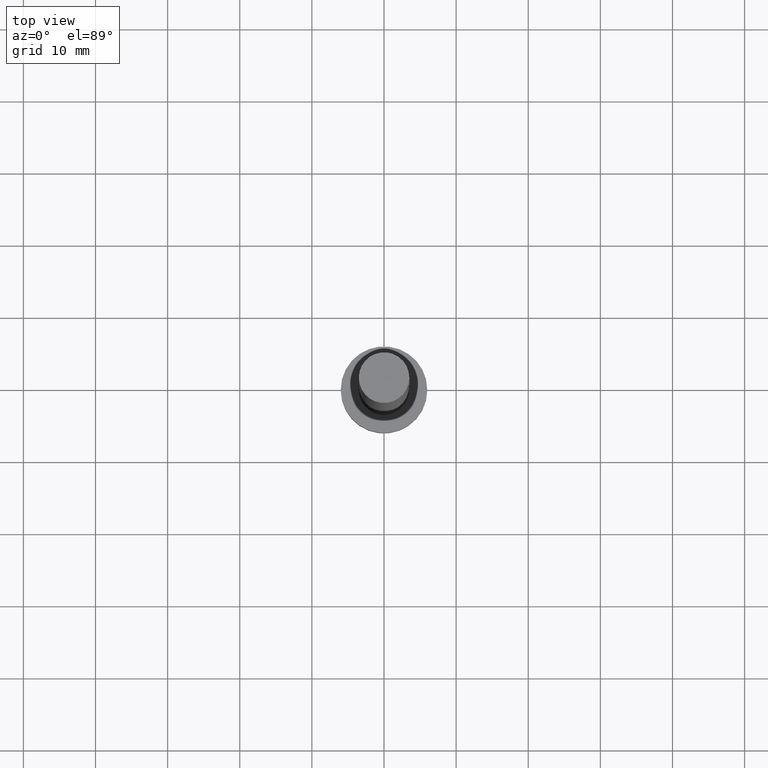
[diagram: clean part render]
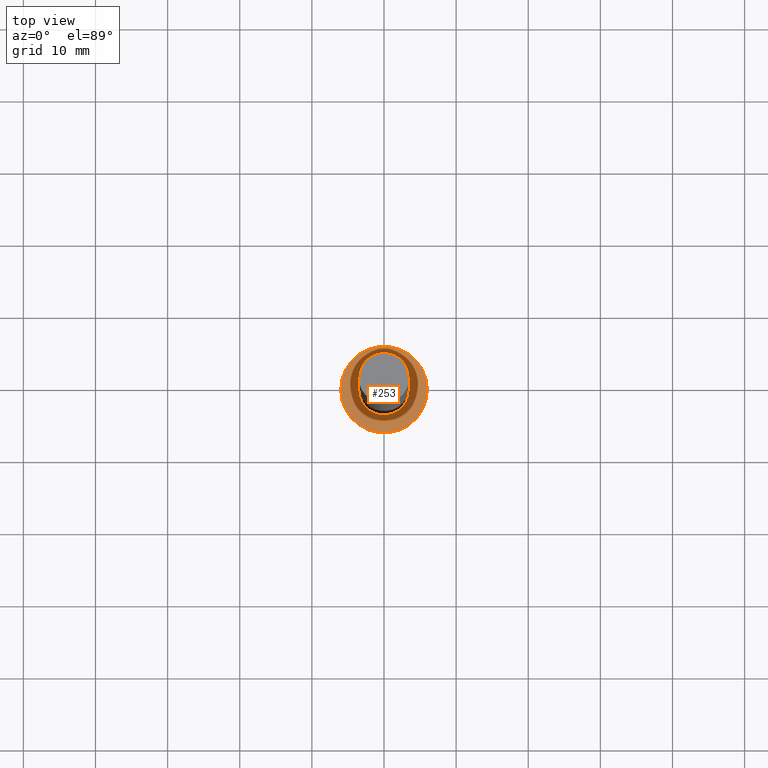
[diagram: same view with one face highlighted and labeled with its STEP entity id]
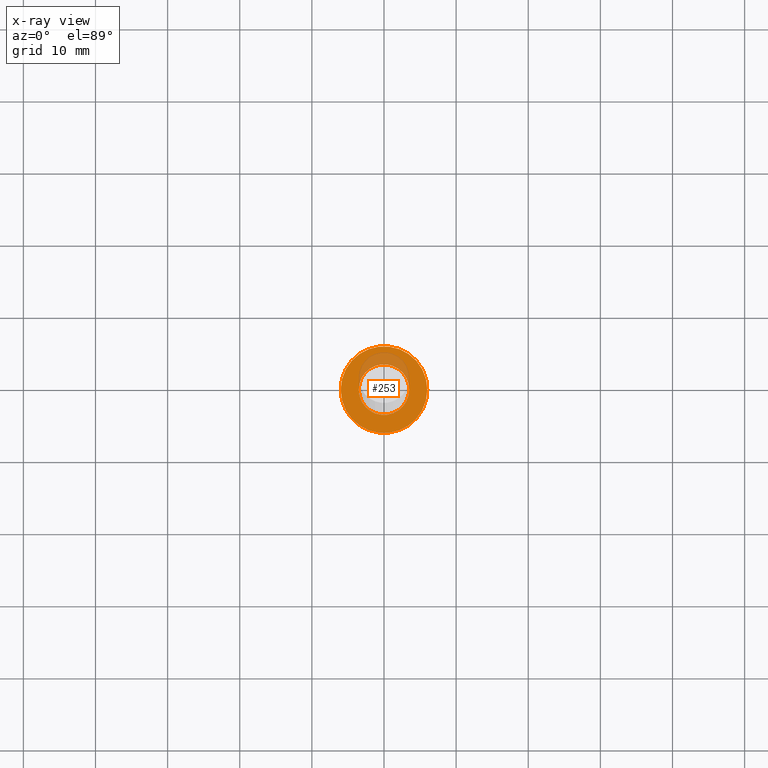
[diagram: x-ray of the same camera — body ghosted, the highlighted face saturated]
A machine part, top view. The second image highlights one B-rep face of the part: STEP entity #253.
The next image is the same camera in x-ray: the body ghosted, the highlighted face saturated — about 16% of this face is hidden behind the body in this view.
In plain terms, the highlighted planar face has unit normal (0, 0, 1).
Its self-contained STEP definition (entity closure, byte-faithful):
#2 = DIRECTION ( 'NONE',  ( 0.000000000000000000, 0.000000000000000000, 1.000000000000000000 ) ) ;
#4 = DIRECTION ( 'NONE',  ( 1.000000000000000000, 0.000000000000000000, 0.000000000000000000 ) ) ;
#6 = PLANE ( 'NONE',  #42 ) ;
#12 = VERTEX_POINT ( 'NONE', #132 ) ;
#17 = EDGE_CURVE ( 'NONE', #26, #12, #121, .T. ) ;
#18 = CARTESIAN_POINT ( 'NONE',  ( 0.000000000000000000, 0.000000000000000000, 5.000000000000000000 ) ) ;
#23 = ORIENTED_EDGE ( 'NONE', *, *, #17, .F. ) ;
#26 = VERTEX_POINT ( 'NONE', #128 ) ;
#31 = AXIS2_PLACEMENT_3D ( 'NONE', #18, #2, #61 ) ;
#39 = DIRECTION ( 'NONE',  ( 0.000000000000000000, 0.000000000000000000, 1.000000000000000000 ) ) ;
#42 = AXIS2_PLACEMENT_3D ( 'NONE', #217, #115, #154 ) ;
#45 = VERTEX_POINT ( 'NONE', #168 ) ;
#52 = ORIENTED_EDGE ( 'NONE', *, *, #62, .T. ) ;
#57 = DIRECTION ( 'NONE',  ( 0.000000000000000000, 0.000000000000000000, 1.000000000000000000 ) ) ;
#61 = DIRECTION ( 'NONE',  ( 1.000000000000000000, 0.000000000000000000, 0.000000000000000000 ) ) ;
#62 = EDGE_CURVE ( 'NONE', #233, #45, #221, .T. ) ;
#67 = EDGE_LOOP ( 'NONE', ( #200, #52 ) ) ;
#70 = CIRCLE ( 'NONE', #76, 6.000000000000000888 ) ;
#72 = EDGE_LOOP ( 'NONE', ( #23, #126 ) ) ;
#76 = AXIS2_PLACEMENT_3D ( 'NONE', #220, #83, #4 ) ;
#77 = DIRECTION ( 'NONE',  ( 1.000000000000000000, 0.000000000000000000, 0.000000000000000000 ) ) ;
#83 = DIRECTION ( 'NONE',  ( 0.000000000000000000, 0.000000000000000000, 1.000000000000000000 ) ) ;
#92 = DIRECTION ( 'NONE',  ( 1.000000000000000000, 0.000000000000000000, 0.000000000000000000 ) ) ;
#98 = FACE_BOUND ( 'NONE', #72, .T. ) ;
#115 = DIRECTION ( 'NONE',  ( 0.000000000000000000, 0.000000000000000000, 1.000000000000000000 ) ) ;
#121 = CIRCLE ( 'NONE', #152, 3.500000000000000000 ) ;
#126 = ORIENTED_EDGE ( 'NONE', *, *, #228, .F. ) ;
#128 = CARTESIAN_POINT ( 'NONE',  ( -3.500000000000000000, 0.000000000000000000, 5.000000000000000000 ) ) ;
#132 = CARTESIAN_POINT ( 'NONE',  ( 3.500000000000000000, 4.286263797015736595E-16, 5.000000000000000000 ) ) ;
#150 = CARTESIAN_POINT ( 'NONE',  ( 0.000000000000000000, 0.000000000000000000, 5.000000000000000000 ) ) ;
#152 = AXIS2_PLACEMENT_3D ( 'NONE', #208, #57, #92 ) ;
#154 = DIRECTION ( 'NONE',  ( 1.000000000000000000, 0.000000000000000000, -0.000000000000000000 ) ) ;
#168 = CARTESIAN_POINT ( 'NONE',  ( -6.000000000000000888, 0.000000000000000000, 5.000000000000000000 ) ) ;
#170 = CARTESIAN_POINT ( 'NONE',  ( 6.000000000000000888, 7.347880794884120722E-16, 5.000000000000000000 ) ) ;
#183 = EDGE_CURVE ( 'NONE', #45, #233, #70, .T. ) ;
#197 = FACE_OUTER_BOUND ( 'NONE', #67, .T. ) ;
#200 = ORIENTED_EDGE ( 'NONE', *, *, #183, .T. ) ;
#208 = CARTESIAN_POINT ( 'NONE',  ( 0.000000000000000000, 0.000000000000000000, 5.000000000000000000 ) ) ;
#213 = CIRCLE ( 'NONE', #31, 3.500000000000000000 ) ;
#217 = CARTESIAN_POINT ( 'NONE',  ( 0.000000000000000000, 0.000000000000000000, 5.000000000000000000 ) ) ;
#220 = CARTESIAN_POINT ( 'NONE',  ( 0.000000000000000000, 0.000000000000000000, 5.000000000000000000 ) ) ;
#221 = CIRCLE ( 'NONE', #254, 6.000000000000000888 ) ;
#228 = EDGE_CURVE ( 'NONE', #12, #26, #213, .T. ) ;
#233 = VERTEX_POINT ( 'NONE', #170 ) ;
#253 = ADVANCED_FACE ( 'NONE', ( #98, #197 ), #6, .T. ) ;
#254 = AXIS2_PLACEMENT_3D ( 'NONE', #150, #39, #77 ) ;